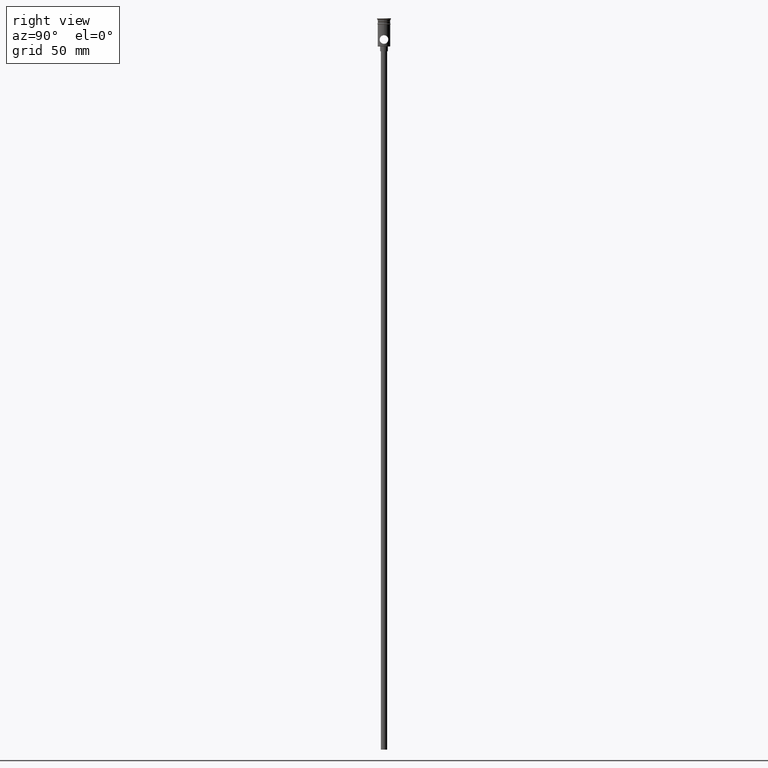
[diagram: clean part render]
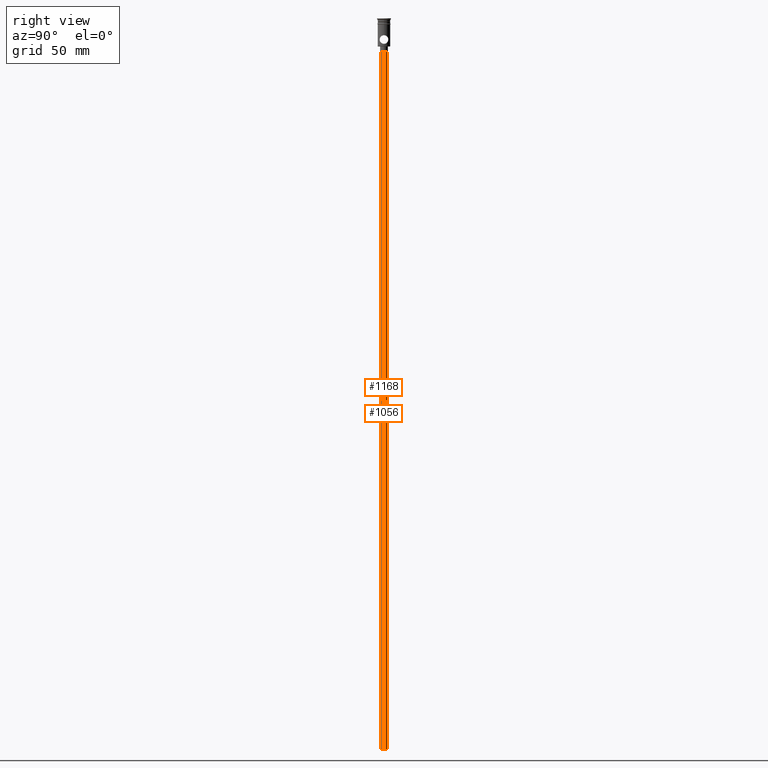
[diagram: same view with one multi-face feature highlighted, each face labeled with its STEP entity id]
A machine part, right view. The highlighted faces form ONE feature: a constant-radius fillet chain: 2 tangent blend faces with common blend radius 2 mm. The faces share edges in the B-rep.
Their STEP definitions:
[1] entity #1056 (Cylinder):
#7 = CIRCLE ( 'NONE', #161, 2.000000000000000000 ) ;
#76 = VECTOR ( 'NONE', #1271, 1000.000000000000000 ) ;
#88 = ORIENTED_EDGE ( 'NONE', *, *, #256, .F. ) ;
#96 = CARTESIAN_POINT ( 'NONE',  ( 2.000000000000000000, 0.000000000000000000, -20.99999999999999645 ) ) ;
#148 = VECTOR ( 'NONE', #787, 1000.000000000000000 ) ;
#161 = AXIS2_PLACEMENT_3D ( 'NONE', #332, #686, #679 ) ;
#167 = DIRECTION ( 'NONE',  ( 1.000000000000000000, 0.000000000000000000, 0.000000000000000000 ) ) ;
#169 = EDGE_CURVE ( 'NONE', #877, #678, #1250, .T. ) ;
#198 = CYLINDRICAL_SURFACE ( 'NONE', #639, 2.000000000000000000 ) ;
#256 = EDGE_CURVE ( 'NONE', #977, #678, #369, .T. ) ;
#268 = DIRECTION ( 'NONE',  ( 0.000000000000000000, 0.000000000000000000, -1.000000000000000000 ) ) ;
#294 = FACE_OUTER_BOUND ( 'NONE', #530, .T. ) ;
#320 = CARTESIAN_POINT ( 'NONE',  ( -2.000000000000000000, 2.449293598294706414E-16, -468.0000000000000000 ) ) ;
#332 = CARTESIAN_POINT ( 'NONE',  ( 0.000000000000000000, 0.000000000000000000, -468.0000000000000000 ) ) ;
#337 = LINE ( 'NONE', #320, #148 ) ;
#358 = CARTESIAN_POINT ( 'NONE',  ( -2.000000000000000000, 2.449293598294706414E-16, -468.0000000000000000 ) ) ;
#369 = LINE ( 'NONE', #820, #76 ) ;
#389 = CARTESIAN_POINT ( 'NONE',  ( 0.000000000000000000, 0.000000000000000000, -468.0000000000000000 ) ) ;
#410 = ORIENTED_EDGE ( 'NONE', *, *, #169, .T. ) ;
#432 = EDGE_CURVE ( 'NONE', #1255, #977, #7, .T. ) ;
#530 = EDGE_LOOP ( 'NONE', ( #1268, #851, #410, #88 ) ) ;
#557 = CARTESIAN_POINT ( 'NONE',  ( -2.000000000000000000, 2.449293598294706414E-16, -20.99999999999999645 ) ) ;
#605 = CARTESIAN_POINT ( 'NONE',  ( 0.000000000000000000, 0.000000000000000000, -20.99999999999999645 ) ) ;
#639 = AXIS2_PLACEMENT_3D ( 'NONE', #389, #861, #167 ) ;
#678 = VERTEX_POINT ( 'NONE', #96 ) ;
#679 = DIRECTION ( 'NONE',  ( -1.000000000000000000, 0.000000000000000000, 0.000000000000000000 ) ) ;
#686 = DIRECTION ( 'NONE',  ( 0.000000000000000000, 0.000000000000000000, -1.000000000000000000 ) ) ;
#787 = DIRECTION ( 'NONE',  ( -0.000000000000000000, -0.000000000000000000, 1.000000000000000000 ) ) ;
#820 = CARTESIAN_POINT ( 'NONE',  ( 2.000000000000000000, 0.000000000000000000, -468.0000000000000000 ) ) ;
#833 = EDGE_CURVE ( 'NONE', #1255, #877, #337, .T. ) ;
#836 = CARTESIAN_POINT ( 'NONE',  ( 2.000000000000000000, 0.000000000000000000, -468.0000000000000000 ) ) ;
#846 = AXIS2_PLACEMENT_3D ( 'NONE', #605, #268, #950 ) ;
#851 = ORIENTED_EDGE ( 'NONE', *, *, #833, .T. ) ;
#861 = DIRECTION ( 'NONE',  ( -0.000000000000000000, -0.000000000000000000, 1.000000000000000000 ) ) ;
#877 = VERTEX_POINT ( 'NONE', #557 ) ;
#950 = DIRECTION ( 'NONE',  ( -1.000000000000000000, 0.000000000000000000, 0.000000000000000000 ) ) ;
#977 = VERTEX_POINT ( 'NONE', #836 ) ;
#1056 = ADVANCED_FACE ( 'NONE', ( #294 ), #198, .T. ) ;
#1250 = CIRCLE ( 'NONE', #846, 2.000000000000000000 ) ;
#1255 = VERTEX_POINT ( 'NONE', #358 ) ;
#1268 = ORIENTED_EDGE ( 'NONE', *, *, #432, .F. ) ;
#1271 = DIRECTION ( 'NONE',  ( -0.000000000000000000, -0.000000000000000000, 1.000000000000000000 ) ) ;
[2] entity #1168 (Cylinder):
#76 = VECTOR ( 'NONE', #1271, 1000.000000000000000 ) ;
#80 = AXIS2_PLACEMENT_3D ( 'NONE', #651, #1400, #621 ) ;
#96 = CARTESIAN_POINT ( 'NONE',  ( 2.000000000000000000, 0.000000000000000000, -20.99999999999999645 ) ) ;
#148 = VECTOR ( 'NONE', #787, 1000.000000000000000 ) ;
#256 = EDGE_CURVE ( 'NONE', #977, #678, #369, .T. ) ;
#320 = CARTESIAN_POINT ( 'NONE',  ( -2.000000000000000000, 2.449293598294706414E-16, -468.0000000000000000 ) ) ;
#337 = LINE ( 'NONE', #320, #148 ) ;
#349 = CYLINDRICAL_SURFACE ( 'NONE', #716, 2.000000000000000000 ) ;
#358 = CARTESIAN_POINT ( 'NONE',  ( -2.000000000000000000, 2.449293598294706414E-16, -468.0000000000000000 ) ) ;
#369 = LINE ( 'NONE', #820, #76 ) ;
#393 = DIRECTION ( 'NONE',  ( 0.000000000000000000, 0.000000000000000000, -1.000000000000000000 ) ) ;
#450 = DIRECTION ( 'NONE',  ( -0.000000000000000000, -0.000000000000000000, 1.000000000000000000 ) ) ;
#550 = ORIENTED_EDGE ( 'NONE', *, *, #1290, .T. ) ;
#557 = CARTESIAN_POINT ( 'NONE',  ( -2.000000000000000000, 2.449293598294706414E-16, -20.99999999999999645 ) ) ;
#621 = DIRECTION ( 'NONE',  ( -1.000000000000000000, 0.000000000000000000, 0.000000000000000000 ) ) ;
#622 = EDGE_LOOP ( 'NONE', ( #677, #993, #880, #550 ) ) ;
#651 = CARTESIAN_POINT ( 'NONE',  ( 0.000000000000000000, 0.000000000000000000, -468.0000000000000000 ) ) ;
#677 = ORIENTED_EDGE ( 'NONE', *, *, #833, .F. ) ;
#678 = VERTEX_POINT ( 'NONE', #96 ) ;
#716 = AXIS2_PLACEMENT_3D ( 'NONE', #1437, #450, #1225 ) ;
#787 = DIRECTION ( 'NONE',  ( -0.000000000000000000, -0.000000000000000000, 1.000000000000000000 ) ) ;
#820 = CARTESIAN_POINT ( 'NONE',  ( 2.000000000000000000, 0.000000000000000000, -468.0000000000000000 ) ) ;
#829 = AXIS2_PLACEMENT_3D ( 'NONE', #1043, #393, #1145 ) ;
#833 = EDGE_CURVE ( 'NONE', #1255, #877, #337, .T. ) ;
#836 = CARTESIAN_POINT ( 'NONE',  ( 2.000000000000000000, 0.000000000000000000, -468.0000000000000000 ) ) ;
#877 = VERTEX_POINT ( 'NONE', #557 ) ;
#880 = ORIENTED_EDGE ( 'NONE', *, *, #256, .T. ) ;
#904 = FACE_OUTER_BOUND ( 'NONE', #622, .T. ) ;
#977 = VERTEX_POINT ( 'NONE', #836 ) ;
#993 = ORIENTED_EDGE ( 'NONE', *, *, #1106, .F. ) ;
#1043 = CARTESIAN_POINT ( 'NONE',  ( 0.000000000000000000, 0.000000000000000000, -20.99999999999999645 ) ) ;
#1106 = EDGE_CURVE ( 'NONE', #977, #1255, #1387, .T. ) ;
#1145 = DIRECTION ( 'NONE',  ( -1.000000000000000000, 0.000000000000000000, 0.000000000000000000 ) ) ;
#1168 = ADVANCED_FACE ( 'NONE', ( #904 ), #349, .T. ) ;
#1205 = CIRCLE ( 'NONE', #829, 2.000000000000000000 ) ;
#1225 = DIRECTION ( 'NONE',  ( 1.000000000000000000, 0.000000000000000000, 0.000000000000000000 ) ) ;
#1255 = VERTEX_POINT ( 'NONE', #358 ) ;
#1271 = DIRECTION ( 'NONE',  ( -0.000000000000000000, -0.000000000000000000, 1.000000000000000000 ) ) ;
#1290 = EDGE_CURVE ( 'NONE', #678, #877, #1205, .T. ) ;
#1387 = CIRCLE ( 'NONE', #80, 2.000000000000000000 ) ;
#1400 = DIRECTION ( 'NONE',  ( 0.000000000000000000, 0.000000000000000000, -1.000000000000000000 ) ) ;
#1437 = CARTESIAN_POINT ( 'NONE',  ( 0.000000000000000000, 0.000000000000000000, -468.0000000000000000 ) ) ;